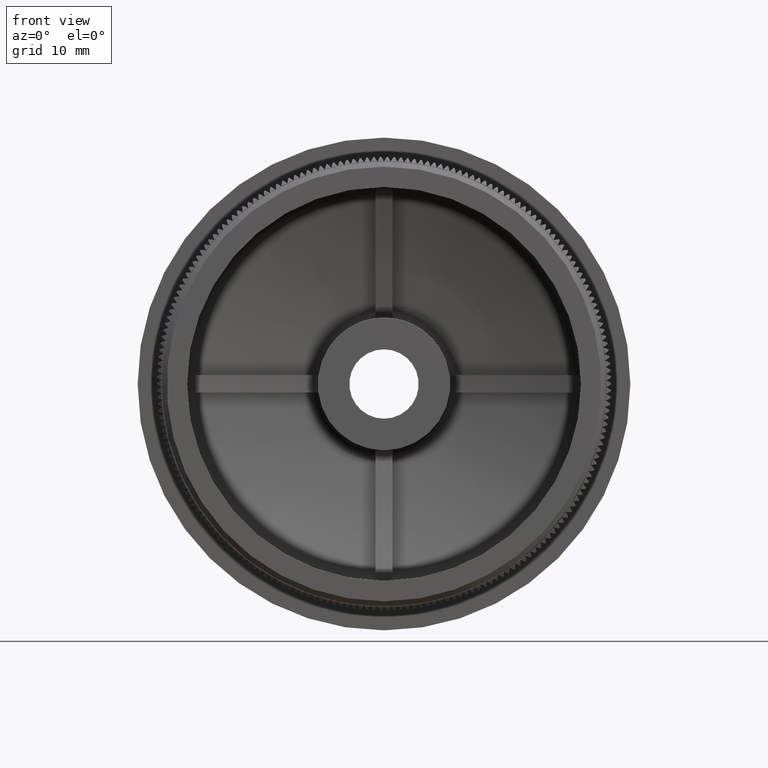
[diagram: clean part render]
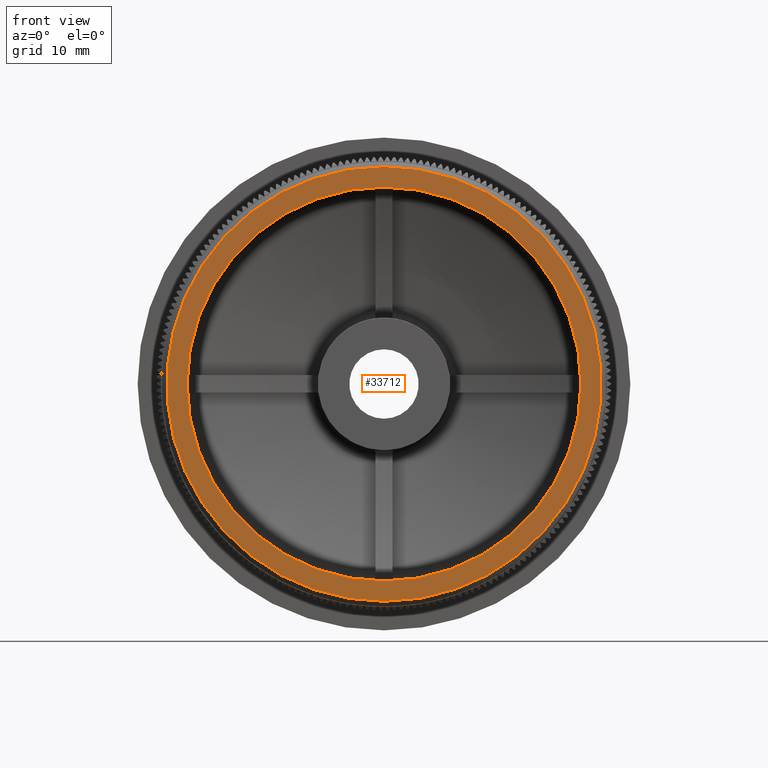
[diagram: same view with one face highlighted and labeled with its STEP entity id]
A machine part, front view. The second image highlights one B-rep face of the part: STEP entity #33712.
In plain terms, the highlighted planar face has unit normal (0, -1, -0).
Its self-contained STEP definition (entity closure, byte-faithful):
#1180 = DIRECTION ( 'NONE',  ( -0.0000000000000000000, -1.000000000000000000, -0.0000000000000000000 ) ) ;
#2557 = DIRECTION ( 'NONE',  ( -0.0000000000000000000, -1.000000000000000000, -0.0000000000000000000 ) ) ;
#3516 = ORIENTED_EDGE ( 'NONE', *, *, #23044, .T. ) ;
#4910 = AXIS2_PLACEMENT_3D ( 'NONE', #22905, #1180, #18102 ) ;
#6093 = CIRCLE ( 'NONE', #47530, 19.30000000000000100 ) ;
#6259 = VERTEX_POINT ( 'NONE', #19235 ) ;
#7618 = DIRECTION ( 'NONE',  ( 0.0000000000000000000, 0.0000000000000000000, -1.000000000000000000 ) ) ;
#8865 = EDGE_CURVE ( 'NONE', #23262, #47887, #55304, .T. ) ;
#13312 = ORIENTED_EDGE ( 'NONE', *, *, #17690, .F. ) ;
#13348 = FACE_OUTER_BOUND ( 'NONE', #31911, .T. ) ;
#14285 = DIRECTION ( 'NONE',  ( 0.0000000000000000000, 0.0000000000000000000, -1.000000000000000000 ) ) ;
#15260 = EDGE_CURVE ( 'NONE', #17989, #6259, #6093, .T. ) ;
#15573 = CIRCLE ( 'NONE', #4910, 19.30000000000000100 ) ;
#17690 = EDGE_CURVE ( 'NONE', #6259, #17989, #15573, .T. ) ;
#17989 = VERTEX_POINT ( 'NONE', #57387 ) ;
#18102 = DIRECTION ( 'NONE',  ( 0.0000000000000000000, 0.0000000000000000000, -1.000000000000000000 ) ) ;
#18268 = EDGE_LOOP ( 'NONE', ( #13312, #38251 ) ) ;
#19235 = CARTESIAN_POINT ( 'NONE',  ( 0.0000000000000000000, 0.0000000000000000000, -19.30000000000000100 ) ) ;
#19902 = CARTESIAN_POINT ( 'NONE',  ( 0.0000000000000000000, 0.0000000000000000000, 0.0000000000000000000 ) ) ;
#22387 = FACE_BOUND ( 'NONE', #18268, .T. ) ;
#22905 = CARTESIAN_POINT ( 'NONE',  ( 0.0000000000000000000, 0.0000000000000000000, 0.0000000000000000000 ) ) ;
#23044 = EDGE_CURVE ( 'NONE', #47887, #23262, #53014, .T. ) ;
#23262 = VERTEX_POINT ( 'NONE', #52231 ) ;
#25715 = CARTESIAN_POINT ( 'NONE',  ( 21.80000000000000100, 0.0000000000000000000, 0.0000000000000000000 ) ) ;
#25881 = CARTESIAN_POINT ( 'NONE',  ( 0.0000000000000000000, 0.0000000000000000000, 21.30000000000000100 ) ) ;
#28825 = DIRECTION ( 'NONE',  ( 0.0000000000000000000, 0.0000000000000000000, -1.000000000000000000 ) ) ;
#31911 = EDGE_LOOP ( 'NONE', ( #3516, #33605 ) ) ;
#33605 = ORIENTED_EDGE ( 'NONE', *, *, #8865, .T. ) ;
#33712 = ADVANCED_FACE ( 'NONE', ( #22387, #13348 ), #38520, .T. ) ;
#36247 = CARTESIAN_POINT ( 'NONE',  ( 0.0000000000000000000, 0.0000000000000000000, 0.0000000000000000000 ) ) ;
#37728 = DIRECTION ( 'NONE',  ( -0.0000000000000000000, -1.000000000000000000, -0.0000000000000000000 ) ) ;
#38251 = ORIENTED_EDGE ( 'NONE', *, *, #15260, .F. ) ;
#38520 = PLANE ( 'NONE',  #47168 ) ;
#38894 = DIRECTION ( 'NONE',  ( 0.0000000000000000000, -1.000000000000000000, -0.0000000000000000000 ) ) ;
#40893 = DIRECTION ( 'NONE',  ( -0.0000000000000000000, -1.000000000000000000, -0.0000000000000000000 ) ) ;
#43663 = AXIS2_PLACEMENT_3D ( 'NONE', #46541, #2557, #46734 ) ;
#46541 = CARTESIAN_POINT ( 'NONE',  ( 0.0000000000000000000, 0.0000000000000000000, 0.0000000000000000000 ) ) ;
#46734 = DIRECTION ( 'NONE',  ( 0.0000000000000000000, 0.0000000000000000000, -1.000000000000000000 ) ) ;
#47168 = AXIS2_PLACEMENT_3D ( 'NONE', #25715, #38894, #7618 ) ;
#47530 = AXIS2_PLACEMENT_3D ( 'NONE', #36247, #40893, #14285 ) ;
#47887 = VERTEX_POINT ( 'NONE', #25881 ) ;
#50485 = AXIS2_PLACEMENT_3D ( 'NONE', #19902, #37728, #28825 ) ;
#52231 = CARTESIAN_POINT ( 'NONE',  ( 2.639113852162546300E-015, 0.0000000000000000000, -21.30000000000000100 ) ) ;
#53014 = CIRCLE ( 'NONE', #50485, 21.30000000000000100 ) ;
#55304 = CIRCLE ( 'NONE', #43663, 21.30000000000000100 ) ;
#57387 = CARTESIAN_POINT ( 'NONE',  ( 2.363568322354391800E-015, 0.0000000000000000000, 19.30000000000000100 ) ) ;